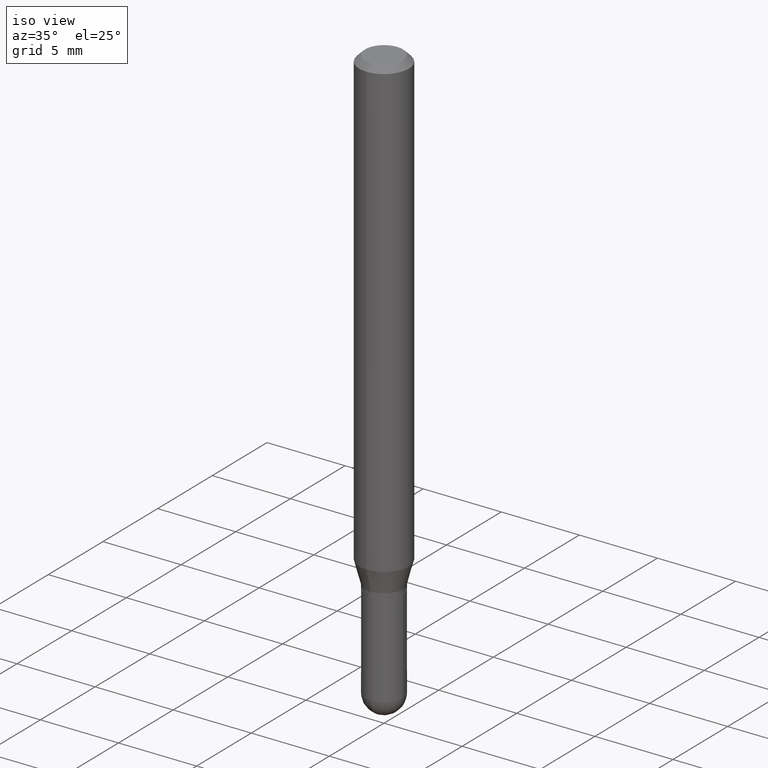
[diagram: clean part render]
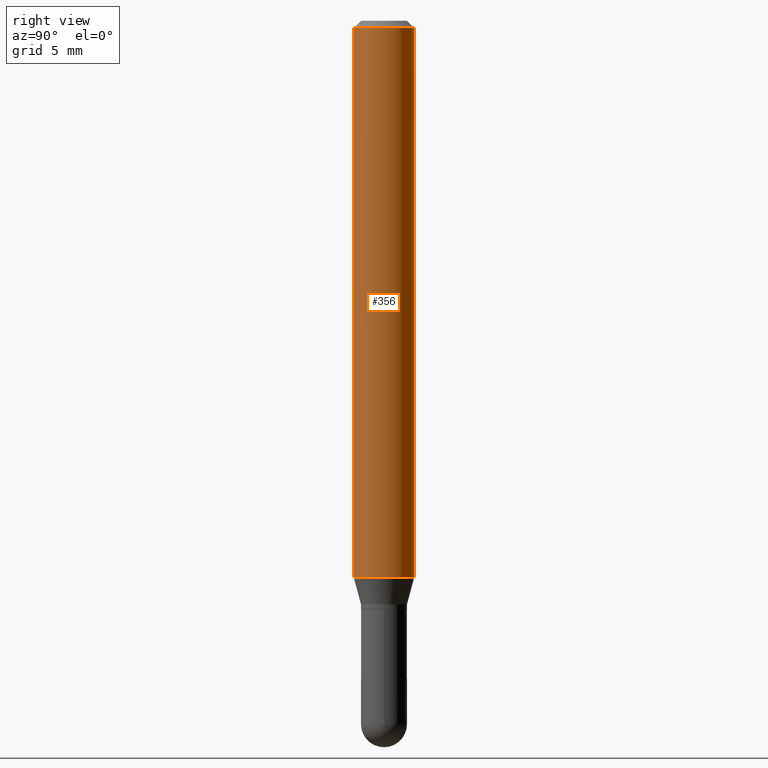
[diagram: tour spotlight — one face highlighted and labeled with its STEP entity id]
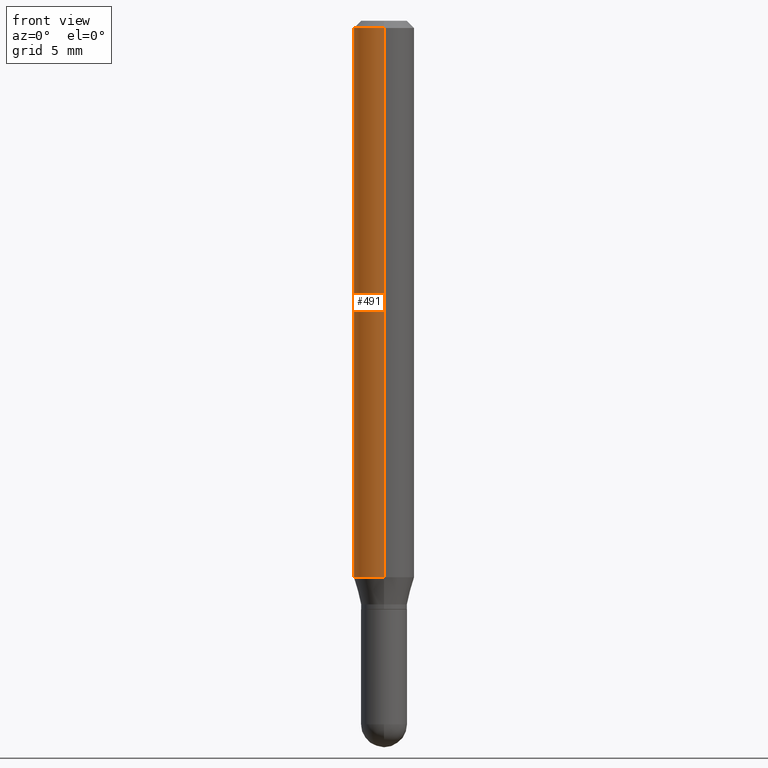
[diagram: tour spotlight — one face highlighted and labeled with its STEP entity id]
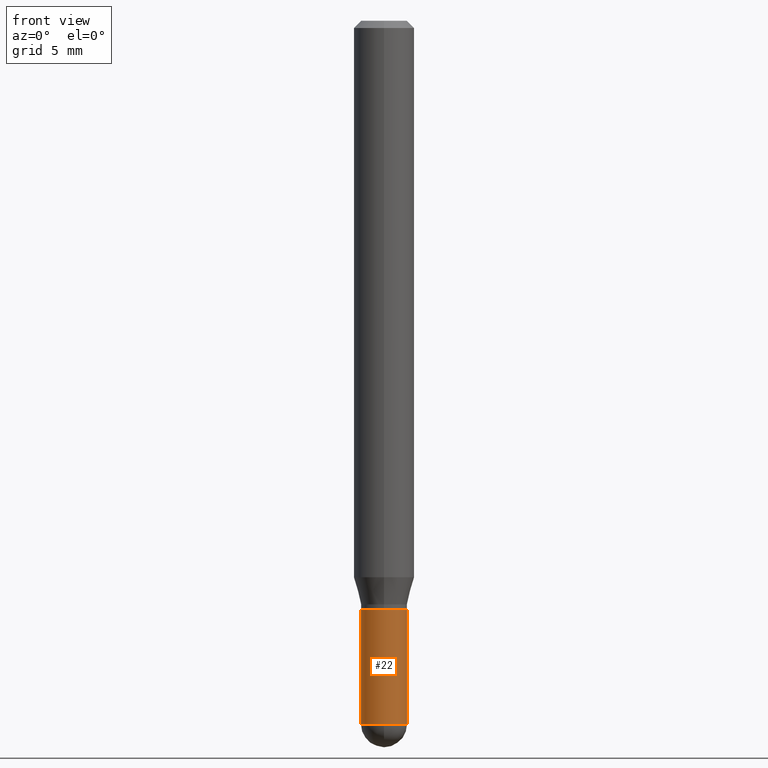
[diagram: tour spotlight — one face highlighted and labeled with its STEP entity id]
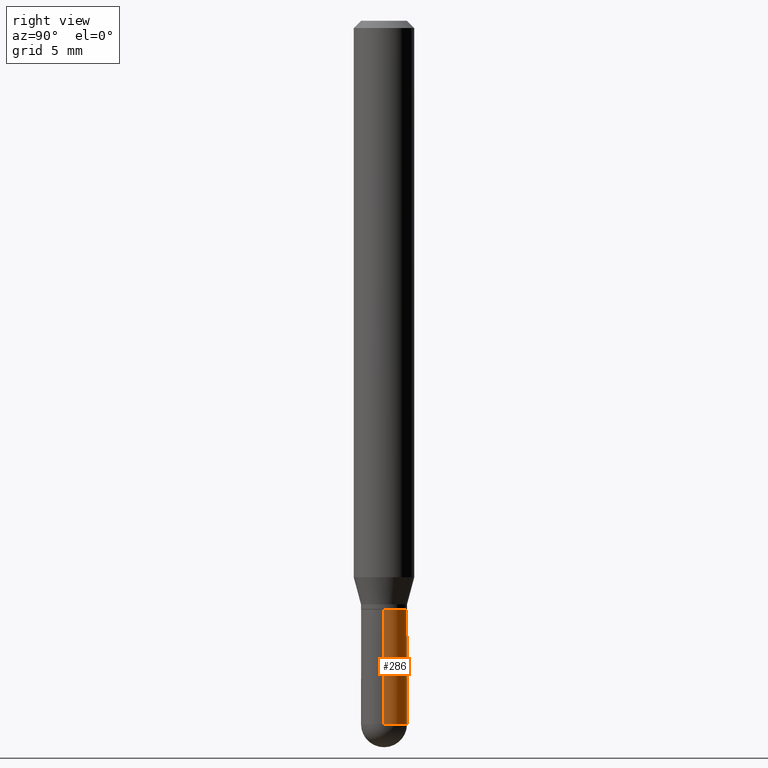
[diagram: tour spotlight — one face highlighted and labeled with its STEP entity id]
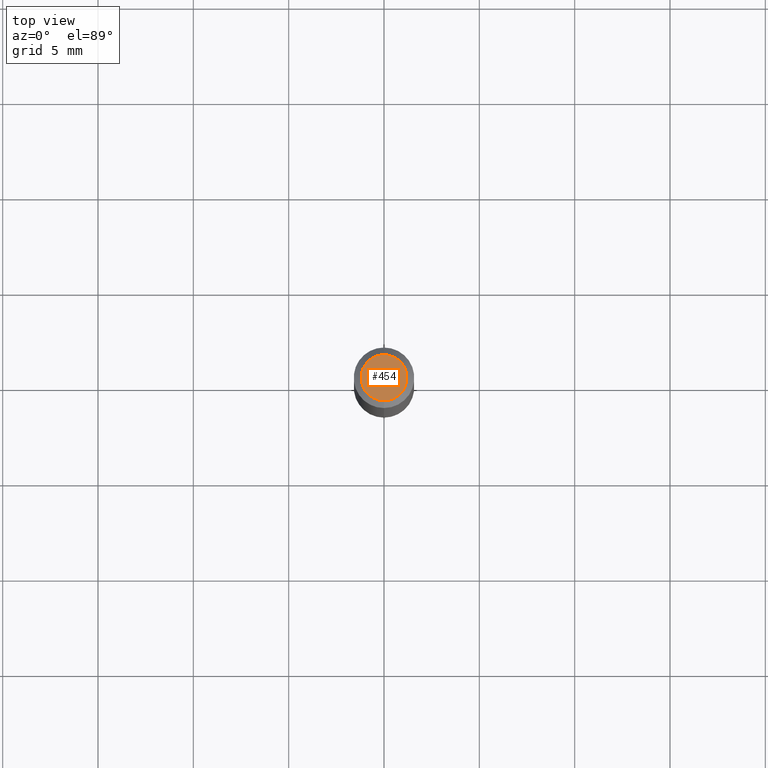
[diagram: tour spotlight — one face highlighted and labeled with its STEP entity id]
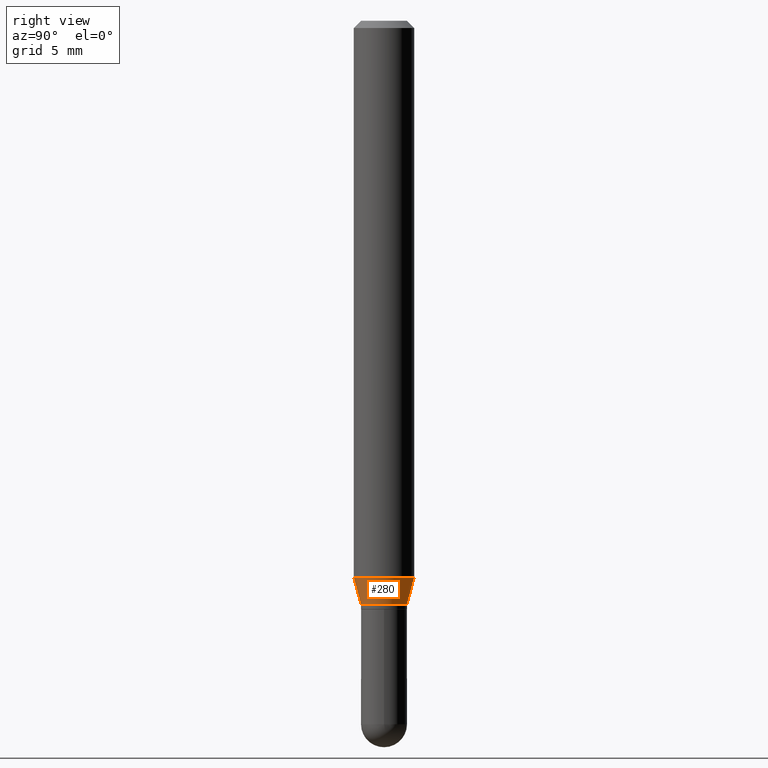
[diagram: tour spotlight — one face highlighted and labeled with its STEP entity id]
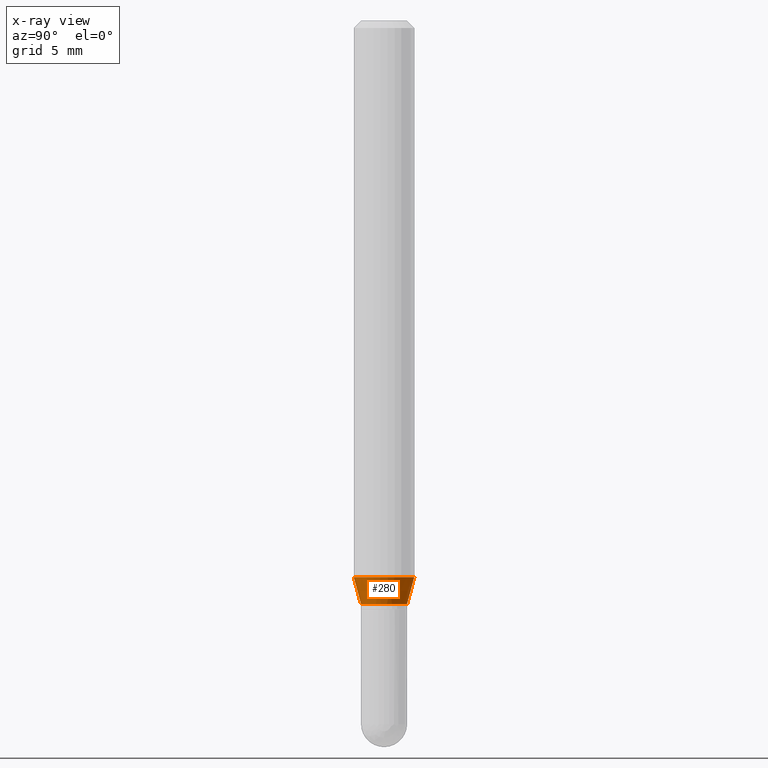
[diagram: x-ray of the same camera — body ghosted, this tour face saturated]
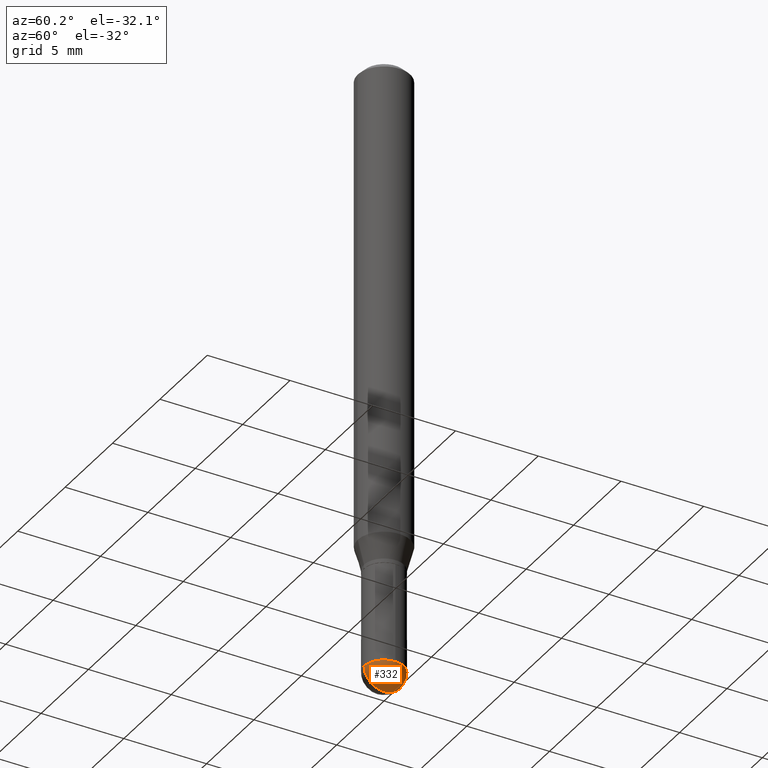
[diagram: tour spotlight — one face highlighted and labeled with its STEP entity id]
A machine part: a face-by-face anatomy tour. The part has 17 B-rep faces; the first image is the clean iso view, then the 7 largest visible faces are spotlighted one at a time (largest first), each with its STEP entity span.

Face 1 — right view, entity #356. In plain terms, the highlighted cylindrical surface (edge-blend (fillet) strip) has radius 1.5875 mm, axis along (-0, 0, 1).
Definition (entity closure, byte-faithful):
#16 = AXIS2_PLACEMENT_3D ( 'NONE', #258, #500, #21 ) ;
#18 = VERTEX_POINT ( 'NONE', #61 ) ;
#21 = DIRECTION ( 'NONE',  ( -6.982962677686265922E-15, -1.000000000000000000, 3.491452876302475461E-15 ) ) ;
#24 = CARTESIAN_POINT ( 'NONE',  ( -4.364351673553635169E-16, -0.06250000000000402456, -1.149019237886467204 ) ) ;
#32 = CARTESIAN_POINT ( 'NONE',  ( 3.668233022206667038E-31, -5.237179314453828365E-17, -0.01500000000000032904 ) ) ;
#33 = EDGE_CURVE ( 'NONE', #397, #18, #144, .T. ) ;
#54 = VECTOR ( 'NONE', #231, 39.37007874015748143 ) ;
#61 = CARTESIAN_POINT ( 'NONE',  ( 4.440892098500906207E-16, 0.06249999999999597544, -1.149019237886467870 ) ) ;
#64 = DIRECTION ( 'NONE',  ( -6.982962677686265922E-15, -1.000000000000000000, 3.483106191921935554E-15 ) ) ;
#71 = CARTESIAN_POINT ( 'NONE',  ( 2.809913541043856998E-29, -4.011746523045585662E-15, -1.149019237886467426 ) ) ;
#98 = VERTEX_POINT ( 'NONE', #499 ) ;
#101 = AXIS2_PLACEMENT_3D ( 'NONE', #32, #431, #64 ) ;
#106 = LINE ( 'NONE', #271, #54 ) ;
#128 = ORIENTED_EDGE ( 'NONE', *, *, #295, .T. ) ;
#138 = CYLINDRICAL_SURFACE ( 'NONE', #16, 0.06250000000000000000 ) ;
#144 = CIRCLE ( 'NONE', #449, 0.06250000000000000000 ) ;
#202 = VERTEX_POINT ( 'NONE', #398 ) ;
#231 = DIRECTION ( 'NONE',  ( -2.445488681471057444E-29, 3.491452876302475855E-15, 1.000000000000000000 ) ) ;
#248 = DIRECTION ( 'NONE',  ( -2.445488681471057444E-29, 3.491452876302475855E-15, 1.000000000000000000 ) ) ;
#258 = CARTESIAN_POINT ( 'NONE',  ( 0.000000000000000000, 0.000000000000000000, 0.000000000000000000 ) ) ;
#271 = CARTESIAN_POINT ( 'NONE',  ( -4.364351673553916201E-16, -0.06250000000000000000, 2.182158047689047163E-16 ) ) ;
#289 = LINE ( 'NONE', #337, #435 ) ;
#290 = EDGE_LOOP ( 'NONE', ( #400, #128, #408, #366 ) ) ;
#295 = EDGE_CURVE ( 'NONE', #18, #98, #289, .T. ) ;
#302 = DIRECTION ( 'NONE',  ( -6.982962677686265922E-15, -1.000000000000000000, 4.370956789862821150E-15 ) ) ;
#337 = CARTESIAN_POINT ( 'NONE',  ( 4.440892098500625669E-16, 0.06250000000000000000, -2.182158047689047163E-16 ) ) ;
#356 = ADVANCED_FACE ( 'NONE', ( #490 ), #138, .T. ) ;
#366 = ORIENTED_EDGE ( 'NONE', *, *, #512, .F. ) ;
#393 = CIRCLE ( 'NONE', #101, 0.06250000000000000000 ) ;
#397 = VERTEX_POINT ( 'NONE', #24 ) ;
#398 = CARTESIAN_POINT ( 'NONE',  ( -4.364351673553912750E-16, -0.06250000000000005551, -0.01500000000000011047 ) ) ;
#400 = ORIENTED_EDGE ( 'NONE', *, *, #33, .T. ) ;
#408 = ORIENTED_EDGE ( 'NONE', *, *, #423, .F. ) ;
#423 = EDGE_CURVE ( 'NONE', #202, #98, #393, .T. ) ;
#431 = DIRECTION ( 'NONE',  ( -2.445488681471057444E-29, 3.491452876302475855E-15, 1.000000000000000000 ) ) ;
#435 = VECTOR ( 'NONE', #248, 39.37007874015748143 ) ;
#449 = AXIS2_PLACEMENT_3D ( 'NONE', #71, #458, #302 ) ;
#458 = DIRECTION ( 'NONE',  ( -2.445488681471057444E-29, 3.491452876302475855E-15, 1.000000000000000000 ) ) ;
#490 = FACE_OUTER_BOUND ( 'NONE', #290, .T. ) ;
#499 = CARTESIAN_POINT ( 'NONE',  ( 4.440892098500909166E-16, 0.06249999999999995143, -0.01500000000000054588 ) ) ;
#500 = DIRECTION ( 'NONE',  ( -2.445488681471057444E-29, 3.491452876302475855E-15, 1.000000000000000000 ) ) ;
#512 = EDGE_CURVE ( 'NONE', #397, #202, #106, .T. ) ;

Face 2 — front view, entity #491. In plain terms, the highlighted cylindrical surface (edge-blend (fillet) strip) has radius 1.5875 mm, axis along (-0, 0, 1).
Definition (entity closure, byte-faithful):
#18 = VERTEX_POINT ( 'NONE', #61 ) ;
#24 = CARTESIAN_POINT ( 'NONE',  ( -4.364351673553635169E-16, -0.06250000000000402456, -1.149019237886467204 ) ) ;
#49 = DIRECTION ( 'NONE',  ( -6.982962677686265922E-15, -1.000000000000000000, 3.483106191921935554E-15 ) ) ;
#51 = EDGE_CURVE ( 'NONE', #18, #397, #437, .T. ) ;
#54 = VECTOR ( 'NONE', #231, 39.37007874015748143 ) ;
#61 = CARTESIAN_POINT ( 'NONE',  ( 4.440892098500906207E-16, 0.06249999999999597544, -1.149019237886467870 ) ) ;
#62 = CARTESIAN_POINT ( 'NONE',  ( 0.000000000000000000, 0.000000000000000000, 0.000000000000000000 ) ) ;
#83 = EDGE_LOOP ( 'NONE', ( #414, #238, #244, #489 ) ) ;
#98 = VERTEX_POINT ( 'NONE', #499 ) ;
#102 = DIRECTION ( 'NONE',  ( -2.445488681471057444E-29, 3.491452876302475855E-15, 1.000000000000000000 ) ) ;
#103 = FACE_OUTER_BOUND ( 'NONE', #83, .T. ) ;
#106 = LINE ( 'NONE', #271, #54 ) ;
#150 = CIRCLE ( 'NONE', #503, 0.06250000000000000000 ) ;
#152 = CARTESIAN_POINT ( 'NONE',  ( 2.809913541043856998E-29, -4.011746523045585662E-15, -1.149019237886467426 ) ) ;
#167 = CARTESIAN_POINT ( 'NONE',  ( 3.668233022206667038E-31, -5.237179314453828365E-17, -0.01500000000000032904 ) ) ;
#202 = VERTEX_POINT ( 'NONE', #398 ) ;
#208 = AXIS2_PLACEMENT_3D ( 'NONE', #152, #102, #234 ) ;
#224 = DIRECTION ( 'NONE',  ( -2.445488681471057444E-29, 3.491452876302475855E-15, 1.000000000000000000 ) ) ;
#231 = DIRECTION ( 'NONE',  ( -2.445488681471057444E-29, 3.491452876302475855E-15, 1.000000000000000000 ) ) ;
#234 = DIRECTION ( 'NONE',  ( -6.982962677686265922E-15, -1.000000000000000000, 4.370956789862821150E-15 ) ) ;
#238 = ORIENTED_EDGE ( 'NONE', *, *, #51, .T. ) ;
#244 = ORIENTED_EDGE ( 'NONE', *, *, #512, .T. ) ;
#248 = DIRECTION ( 'NONE',  ( -2.445488681471057444E-29, 3.491452876302475855E-15, 1.000000000000000000 ) ) ;
#265 = EDGE_CURVE ( 'NONE', #98, #202, #150, .T. ) ;
#271 = CARTESIAN_POINT ( 'NONE',  ( -4.364351673553916201E-16, -0.06250000000000000000, 2.182158047689047163E-16 ) ) ;
#289 = LINE ( 'NONE', #337, #435 ) ;
#295 = EDGE_CURVE ( 'NONE', #18, #98, #289, .T. ) ;
#337 = CARTESIAN_POINT ( 'NONE',  ( 4.440892098500625669E-16, 0.06250000000000000000, -2.182158047689047163E-16 ) ) ;
#364 = AXIS2_PLACEMENT_3D ( 'NONE', #62, #224, #382 ) ;
#382 = DIRECTION ( 'NONE',  ( -6.982962677686265922E-15, -1.000000000000000000, 3.491452876302475461E-15 ) ) ;
#397 = VERTEX_POINT ( 'NONE', #24 ) ;
#398 = CARTESIAN_POINT ( 'NONE',  ( -4.364351673553912750E-16, -0.06250000000000005551, -0.01500000000000011047 ) ) ;
#414 = ORIENTED_EDGE ( 'NONE', *, *, #295, .F. ) ;
#424 = CYLINDRICAL_SURFACE ( 'NONE', #364, 0.06250000000000000000 ) ;
#435 = VECTOR ( 'NONE', #248, 39.37007874015748143 ) ;
#437 = CIRCLE ( 'NONE', #208, 0.06250000000000000000 ) ;
#444 = DIRECTION ( 'NONE',  ( -2.445488681471057444E-29, 3.491452876302475855E-15, 1.000000000000000000 ) ) ;
#489 = ORIENTED_EDGE ( 'NONE', *, *, #265, .F. ) ;
#491 = ADVANCED_FACE ( 'NONE', ( #103 ), #424, .T. ) ;
#499 = CARTESIAN_POINT ( 'NONE',  ( 4.440892098500909166E-16, 0.06249999999999995143, -0.01500000000000054588 ) ) ;
#503 = AXIS2_PLACEMENT_3D ( 'NONE', #167, #444, #49 ) ;
#512 = EDGE_CURVE ( 'NONE', #397, #202, #106, .T. ) ;

Face 3 — front view, entity #22. In plain terms, the highlighted cylindrical surface (edge-blend (fillet) strip) has radius 1.2065 mm, axis along (-0, 0, 1).
Definition (entity closure, byte-faithful):
#1 = EDGE_LOOP ( 'NONE', ( #416, #257, #211, #438, #319 ) ) ;
#8 = CARTESIAN_POINT ( 'NONE',  ( 0.04749999999999999362, -4.573840553884519999E-15, -1.215000000000000080 ) ) ;
#14 = AXIS2_PLACEMENT_3D ( 'NONE', #432, #309, #182 ) ;
#22 = ADVANCED_FACE ( 'NONE', ( #28 ), #504, .T. ) ;
#27 = CARTESIAN_POINT ( 'NONE',  ( 0.04750000000000000749, -3.316907271900977082E-16, 2.316183968503069432E-30 ) ) ;
#28 = FACE_OUTER_BOUND ( 'NONE', #1, .T. ) ;
#52 = VERTEX_POINT ( 'NONE', #263 ) ;
#63 = DIRECTION ( 'NONE',  ( 1.000000000000000000, -6.982962677686266711E-15, 4.876176775795934672E-29 ) ) ;
#75 = VECTOR ( 'NONE', #433, 39.37007874015748143 ) ;
#107 = CARTESIAN_POINT ( 'NONE',  ( 3.552043440983912297E-29, -5.071376644669670605E-15, -1.452500000000000346 ) ) ;
#114 = LINE ( 'NONE', #27, #75 ) ;
#115 = CARTESIAN_POINT ( 'NONE',  ( 0.04750000000000000749, -4.988453962872144057E-15, -1.452500000000000346 ) ) ;
#122 = AXIS2_PLACEMENT_3D ( 'NONE', #367, #374, #410 ) ;
#124 = EDGE_CURVE ( 'NONE', #443, #131, #465, .T. ) ;
#131 = VERTEX_POINT ( 'NONE', #230 ) ;
#146 = DIRECTION ( 'NONE',  ( 1.000000000000000000, -6.982962677686260400E-15, 0.000000000000000000 ) ) ;
#161 = EDGE_CURVE ( 'NONE', #52, #284, #411, .T. ) ;
#182 = DIRECTION ( 'NONE',  ( 1.000000000000000000, -6.982962677686261977E-15, 0.000000000000000000 ) ) ;
#187 = LINE ( 'NONE', #345, #259 ) ;
#200 = VERTEX_POINT ( 'NONE', #115 ) ;
#211 = ORIENTED_EDGE ( 'NONE', *, *, #317, .T. ) ;
#230 = CARTESIAN_POINT ( 'NONE',  ( -3.316907271900626039E-16, -0.04750000000000514228, -1.452500000000000124 ) ) ;
#257 = ORIENTED_EDGE ( 'NONE', *, *, #124, .T. ) ;
#259 = VECTOR ( 'NONE', #498, 39.37007874015748143 ) ;
#263 = CARTESIAN_POINT ( 'NONE',  ( -0.04749999999999999362, -4.319255436195999053E-15, -1.215000000000000080 ) ) ;
#269 = DIRECTION ( 'NONE',  ( -2.445468806185136597E-29, 3.491481338843145583E-15, 1.000000000000000000 ) ) ;
#274 = CARTESIAN_POINT ( 'NONE',  ( 0.000000000000000000, 0.000000000000000000, 0.000000000000000000 ) ) ;
#284 = VERTEX_POINT ( 'NONE', #8 ) ;
#309 = DIRECTION ( 'NONE',  ( -2.445468806185136597E-29, 3.491481338843145583E-15, 1.000000000000000000 ) ) ;
#317 = EDGE_CURVE ( 'NONE', #131, #200, #363, .T. ) ;
#319 = ORIENTED_EDGE ( 'NONE', *, *, #161, .F. ) ;
#345 = CARTESIAN_POINT ( 'NONE',  ( -0.04750000000000000749, 3.375077994860476415E-16, -2.336494167871080260E-30 ) ) ;
#363 = CIRCLE ( 'NONE', #122, 0.04750000000000000749 ) ;
#367 = CARTESIAN_POINT ( 'NONE',  ( 3.552043440983912297E-29, -5.071376644669670605E-15, -1.452500000000000346 ) ) ;
#374 = DIRECTION ( 'NONE',  ( -2.445468806185136597E-29, 3.491481338843145583E-15, 1.000000000000000000 ) ) ;
#410 = DIRECTION ( 'NONE',  ( 1.000000000000000000, -6.982962677686260400E-15, 0.000000000000000000 ) ) ;
#411 = CIRCLE ( 'NONE', #14, 0.04749999999999999362 ) ;
#416 = ORIENTED_EDGE ( 'NONE', *, *, #497, .F. ) ;
#419 = AXIS2_PLACEMENT_3D ( 'NONE', #274, #425, #63 ) ;
#425 = DIRECTION ( 'NONE',  ( -2.445468806185136597E-29, 3.491481338843145583E-15, 1.000000000000000000 ) ) ;
#432 = CARTESIAN_POINT ( 'NONE',  ( 2.971244599514941458E-29, -4.242149826694422488E-15, -1.215000000000000080 ) ) ;
#433 = DIRECTION ( 'NONE',  ( -2.445468806185136877E-29, 3.491481338843145188E-15, 1.000000000000000000 ) ) ;
#438 = ORIENTED_EDGE ( 'NONE', *, *, #470, .T. ) ;
#443 = VERTEX_POINT ( 'NONE', #459 ) ;
#459 = CARTESIAN_POINT ( 'NONE',  ( -0.04750000000000000749, -4.319255436195999053E-15, -1.452500000000000346 ) ) ;
#465 = CIRCLE ( 'NONE', #511, 0.04750000000000000749 ) ;
#470 = EDGE_CURVE ( 'NONE', #200, #284, #114, .T. ) ;
#497 = EDGE_CURVE ( 'NONE', #443, #52, #187, .T. ) ;
#498 = DIRECTION ( 'NONE',  ( -2.445468806185136877E-29, 3.491481338843145188E-15, 1.000000000000000000 ) ) ;
#504 = CYLINDRICAL_SURFACE ( 'NONE', #419, 0.04750000000000000749 ) ;
#511 = AXIS2_PLACEMENT_3D ( 'NONE', #107, #269, #146 ) ;

Face 4 — right view, entity #286. In plain terms, the highlighted cylindrical surface (edge-blend (fillet) strip) has radius 1.2065 mm, axis along (-0, 0, 1).
Definition (entity closure, byte-faithful):
#5 = CARTESIAN_POINT ( 'NONE',  ( 3.375077994860835347E-16, 0.04749999999999498373, -1.452500000000000790 ) ) ;
#8 = CARTESIAN_POINT ( 'NONE',  ( 0.04749999999999999362, -4.573840553884519999E-15, -1.215000000000000080 ) ) ;
#19 = FACE_OUTER_BOUND ( 'NONE', #137, .T. ) ;
#27 = CARTESIAN_POINT ( 'NONE',  ( 0.04750000000000000749, -3.316907271900977082E-16, 2.316183968503069432E-30 ) ) ;
#38 = DIRECTION ( 'NONE',  ( -2.445468806185136597E-29, 3.491481338843145583E-15, 1.000000000000000000 ) ) ;
#52 = VERTEX_POINT ( 'NONE', #263 ) ;
#53 = DIRECTION ( 'NONE',  ( -2.445468806185136597E-29, 3.491481338843145583E-15, 1.000000000000000000 ) ) ;
#67 = DIRECTION ( 'NONE',  ( 1.000000000000000000, -6.982962677686261977E-15, 0.000000000000000000 ) ) ;
#75 = VECTOR ( 'NONE', #433, 39.37007874015748143 ) ;
#114 = LINE ( 'NONE', #27, #75 ) ;
#115 = CARTESIAN_POINT ( 'NONE',  ( 0.04750000000000000749, -4.988453962872144057E-15, -1.452500000000000346 ) ) ;
#129 = DIRECTION ( 'NONE',  ( 1.000000000000000000, -6.982962677686266711E-15, 4.876176775795934672E-29 ) ) ;
#137 = EDGE_LOOP ( 'NONE', ( #376, #261, #206, #159, #320 ) ) ;
#151 = CARTESIAN_POINT ( 'NONE',  ( 3.552043440983912297E-29, -5.071376644669670605E-15, -1.452500000000000346 ) ) ;
#153 = DIRECTION ( 'NONE',  ( -2.445468806185136597E-29, 3.491481338843145583E-15, 1.000000000000000000 ) ) ;
#159 = ORIENTED_EDGE ( 'NONE', *, *, #470, .F. ) ;
#164 = AXIS2_PLACEMENT_3D ( 'NONE', #380, #190, #67 ) ;
#187 = LINE ( 'NONE', #345, #259 ) ;
#190 = DIRECTION ( 'NONE',  ( -2.445468806185136597E-29, 3.491481338843145583E-15, 1.000000000000000000 ) ) ;
#200 = VERTEX_POINT ( 'NONE', #115 ) ;
#203 = EDGE_CURVE ( 'NONE', #316, #443, #440, .T. ) ;
#206 = ORIENTED_EDGE ( 'NONE', *, *, #476, .F. ) ;
#217 = AXIS2_PLACEMENT_3D ( 'NONE', #151, #153, #233 ) ;
#233 = DIRECTION ( 'NONE',  ( 1.000000000000000000, -6.982962677686260400E-15, 0.000000000000000000 ) ) ;
#259 = VECTOR ( 'NONE', #498, 39.37007874015748143 ) ;
#261 = ORIENTED_EDGE ( 'NONE', *, *, #497, .T. ) ;
#263 = CARTESIAN_POINT ( 'NONE',  ( -0.04749999999999999362, -4.319255436195999053E-15, -1.215000000000000080 ) ) ;
#284 = VERTEX_POINT ( 'NONE', #8 ) ;
#286 = ADVANCED_FACE ( 'NONE', ( #19 ), #448, .T. ) ;
#291 = AXIS2_PLACEMENT_3D ( 'NONE', #395, #38, #507 ) ;
#316 = VERTEX_POINT ( 'NONE', #5 ) ;
#320 = ORIENTED_EDGE ( 'NONE', *, *, #378, .T. ) ;
#345 = CARTESIAN_POINT ( 'NONE',  ( -0.04750000000000000749, 3.375077994860476415E-16, -2.336494167871080260E-30 ) ) ;
#376 = ORIENTED_EDGE ( 'NONE', *, *, #203, .T. ) ;
#378 = EDGE_CURVE ( 'NONE', #200, #316, #417, .T. ) ;
#380 = CARTESIAN_POINT ( 'NONE',  ( 2.971244599514941458E-29, -4.242149826694422488E-15, -1.215000000000000080 ) ) ;
#395 = CARTESIAN_POINT ( 'NONE',  ( 3.552043440983912297E-29, -5.071376644669670605E-15, -1.452500000000000346 ) ) ;
#415 = CARTESIAN_POINT ( 'NONE',  ( 0.000000000000000000, 0.000000000000000000, 0.000000000000000000 ) ) ;
#417 = CIRCLE ( 'NONE', #217, 0.04750000000000000749 ) ;
#433 = DIRECTION ( 'NONE',  ( -2.445468806185136877E-29, 3.491481338843145188E-15, 1.000000000000000000 ) ) ;
#440 = CIRCLE ( 'NONE', #291, 0.04750000000000000749 ) ;
#443 = VERTEX_POINT ( 'NONE', #459 ) ;
#448 = CYLINDRICAL_SURFACE ( 'NONE', #474, 0.04750000000000000749 ) ;
#459 = CARTESIAN_POINT ( 'NONE',  ( -0.04750000000000000749, -4.319255436195999053E-15, -1.452500000000000346 ) ) ;
#470 = EDGE_CURVE ( 'NONE', #200, #284, #114, .T. ) ;
#474 = AXIS2_PLACEMENT_3D ( 'NONE', #415, #53, #129 ) ;
#476 = EDGE_CURVE ( 'NONE', #284, #52, #478, .T. ) ;
#478 = CIRCLE ( 'NONE', #164, 0.04749999999999999362 ) ;
#497 = EDGE_CURVE ( 'NONE', #443, #52, #187, .T. ) ;
#498 = DIRECTION ( 'NONE',  ( -2.445468806185136877E-29, 3.491481338843145188E-15, 1.000000000000000000 ) ) ;
#507 = DIRECTION ( 'NONE',  ( 1.000000000000000000, -6.982962677686260400E-15, 0.000000000000000000 ) ) ;

Face 5 — top view, entity #454. In plain terms, the highlighted planar face has unit normal (0, -0, -1).
Definition (entity closure, byte-faithful):
#17 = EDGE_CURVE ( 'NONE', #484, #216, #201, .T. ) ;
#43 = AXIS2_PLACEMENT_3D ( 'NONE', #390, #311, #273 ) ;
#74 = AXIS2_PLACEMENT_3D ( 'NONE', #191, #386, #389 ) ;
#76 = CARTESIAN_POINT ( 'NONE',  ( 3.840629472727447874E-16, 0.04749999999999999362, -4.939923113072091241E-16 ) ) ;
#108 = CARTESIAN_POINT ( 'NONE',  ( -3.773273898774340269E-16, -0.04749999999999999362, -1.623042880584739168E-16 ) ) ;
#112 = FACE_OUTER_BOUND ( 'NONE', #421, .T. ) ;
#121 = ORIENTED_EDGE ( 'NONE', *, *, #17, .T. ) ;
#191 = CARTESIAN_POINT ( 'NONE',  ( 8.024829527183616290E-45, -1.145714324781423715E-30, -3.281482996828415081E-16 ) ) ;
#201 = CIRCLE ( 'NONE', #74, 0.04749999999999999362 ) ;
#216 = VERTEX_POINT ( 'NONE', #76 ) ;
#264 = DIRECTION ( 'NONE',  ( 2.445488681471057163E-29, -3.491452876302475855E-15, -1.000000000000000000 ) ) ;
#273 = DIRECTION ( 'NONE',  ( -6.982962677686266711E-15, -1.000000000000000000, 3.491452876302476644E-15 ) ) ;
#301 = AXIS2_PLACEMENT_3D ( 'NONE', #385, #264, #471 ) ;
#311 = DIRECTION ( 'NONE',  ( -2.445488681471057444E-29, 3.491452876302475855E-15, 1.000000000000000000 ) ) ;
#354 = PLANE ( 'NONE',  #301 ) ;
#360 = ORIENTED_EDGE ( 'NONE', *, *, #394, .T. ) ;
#385 = CARTESIAN_POINT ( 'NONE',  ( 3.316907271900976096E-16, 0.04749999999999999362, -3.299181614657883454E-16 ) ) ;
#386 = DIRECTION ( 'NONE',  ( -2.445488681471057444E-29, 3.491452876302475855E-15, 1.000000000000000000 ) ) ;
#389 = DIRECTION ( 'NONE',  ( -6.982962677686266711E-15, -1.000000000000000000, 3.491452876302476644E-15 ) ) ;
#390 = CARTESIAN_POINT ( 'NONE',  ( 8.024829527183616290E-45, -1.145714324781423715E-30, -3.281482996828415081E-16 ) ) ;
#394 = EDGE_CURVE ( 'NONE', #216, #484, #494, .T. ) ;
#421 = EDGE_LOOP ( 'NONE', ( #360, #121 ) ) ;
#454 = ADVANCED_FACE ( 'NONE', ( #112 ), #354, .F. ) ;
#471 = DIRECTION ( 'NONE',  ( 6.982962677686265922E-15, 1.000000000000000000, -3.491452876302475855E-15 ) ) ;
#484 = VERTEX_POINT ( 'NONE', #108 ) ;
#494 = CIRCLE ( 'NONE', #43, 0.04749999999999999362 ) ;

Face 6 — right view, entity #280. An x-ray twin of the same camera follows (body ghosted, this face saturated) — the face is partly hidden behind the body. In plain terms, the highlighted conical surface has half-angle 15 deg.
Definition (entity closure, byte-faithful):
#18 = VERTEX_POINT ( 'NONE', #61 ) ;
#24 = CARTESIAN_POINT ( 'NONE',  ( -4.364351673553635169E-16, -0.06250000000000402456, -1.149019237886467204 ) ) ;
#33 = EDGE_CURVE ( 'NONE', #397, #18, #144, .T. ) ;
#34 = VECTOR ( 'NONE', #352, 39.37007874015748143 ) ;
#37 = EDGE_CURVE ( 'NONE', #179, #397, #344, .T. ) ;
#57 = DIRECTION ( 'NONE',  ( -2.445488681471057444E-29, 3.491452876302475855E-15, 1.000000000000000000 ) ) ;
#59 = ORIENTED_EDGE ( 'NONE', *, *, #312, .T. ) ;
#61 = CARTESIAN_POINT ( 'NONE',  ( 4.440892098500906207E-16, 0.06249999999999597544, -1.149019237886467870 ) ) ;
#71 = CARTESIAN_POINT ( 'NONE',  ( 2.809913541043856998E-29, -4.011746523045585662E-15, -1.149019237886467426 ) ) ;
#80 = CARTESIAN_POINT ( 'NONE',  ( -3.316907271900685203E-16, -0.04750000000000426797, -1.205000000000000293 ) ) ;
#100 = DIRECTION ( 'NONE',  ( -2.445488681471057444E-29, 3.491452876302475855E-15, 1.000000000000000000 ) ) ;
#119 = LINE ( 'NONE', #239, #186 ) ;
#144 = CIRCLE ( 'NONE', #449, 0.06250000000000000000 ) ;
#171 = CARTESIAN_POINT ( 'NONE',  ( 2.946813861172625415E-29, -4.207200715944485096E-15, -1.205000000000000293 ) ) ;
#173 = VERTEX_POINT ( 'NONE', #305 ) ;
#176 = CIRCLE ( 'NONE', #278, 0.04750000000000005607 ) ;
#179 = VERTEX_POINT ( 'NONE', #80 ) ;
#180 = CARTESIAN_POINT ( 'NONE',  ( 2.946813861172625415E-29, -4.207200715944485096E-15, -1.205000000000000293 ) ) ;
#186 = VECTOR ( 'NONE', #281, 39.37007874015748143 ) ;
#193 = CARTESIAN_POINT ( 'NONE',  ( -3.316907271900685203E-16, -0.04750000000000426797, -1.205000000000000293 ) ) ;
#197 = EDGE_CURVE ( 'NONE', #173, #18, #119, .T. ) ;
#222 = DIRECTION ( 'NONE',  ( -6.982962677686265133E-15, -1.000000000000000000, 2.875629467015010530E-15 ) ) ;
#239 = CARTESIAN_POINT ( 'NONE',  ( 3.375077994860774210E-16, 0.04749999999999585110, -1.205000000000000515 ) ) ;
#255 = DIRECTION ( 'NONE',  ( -6.982962677686265133E-15, -1.000000000000000000, 2.875629467015010530E-15 ) ) ;
#266 = ORIENTED_EDGE ( 'NONE', *, *, #33, .F. ) ;
#278 = AXIS2_PLACEMENT_3D ( 'NONE', #171, #57, #222 ) ;
#280 = ADVANCED_FACE ( 'NONE', ( #457 ), #353, .T. ) ;
#281 = DIRECTION ( 'NONE',  ( 1.839019923739597160E-15, 0.2588190451025245142, 0.9659258262890673130 ) ) ;
#296 = ORIENTED_EDGE ( 'NONE', *, *, #197, .T. ) ;
#302 = DIRECTION ( 'NONE',  ( -6.982962677686265922E-15, -1.000000000000000000, 4.370956789862821150E-15 ) ) ;
#305 = CARTESIAN_POINT ( 'NONE',  ( 3.907985046680840948E-16, 0.04749999999999585110, -1.205000000000000515 ) ) ;
#312 = EDGE_CURVE ( 'NONE', #179, #173, #176, .T. ) ;
#344 = LINE ( 'NONE', #193, #34 ) ;
#352 = DIRECTION ( 'NONE',  ( -1.807323732225326984E-15, -0.2588190451025177419, 0.9659258262890690894 ) ) ;
#353 = CONICAL_SURFACE ( 'NONE', #407, 0.04750000000000005607, 0.2617993877991497964 ) ;
#370 = EDGE_LOOP ( 'NONE', ( #59, #296, #266, #447 ) ) ;
#397 = VERTEX_POINT ( 'NONE', #24 ) ;
#407 = AXIS2_PLACEMENT_3D ( 'NONE', #180, #100, #255 ) ;
#447 = ORIENTED_EDGE ( 'NONE', *, *, #37, .F. ) ;
#449 = AXIS2_PLACEMENT_3D ( 'NONE', #71, #458, #302 ) ;
#457 = FACE_OUTER_BOUND ( 'NONE', #370, .T. ) ;
#458 = DIRECTION ( 'NONE',  ( -2.445488681471057444E-29, 3.491452876302475855E-15, 1.000000000000000000 ) ) ;

Face 7 — auxiliary view, entity #332. In plain terms, the highlighted spherical surface has radius 1.2065 mm.
Definition (entity closure, byte-faithful):
#5 = CARTESIAN_POINT ( 'NONE',  ( 3.375077994860835347E-16, 0.04749999999999498373, -1.452500000000000790 ) ) ;
#65 = AXIS2_PLACEMENT_3D ( 'NONE', #355, #509, #315 ) ;
#68 = DIRECTION ( 'NONE',  ( -6.982962677686265922E-15, -1.000000000000000000, 0.000000000000000000 ) ) ;
#90 = ORIENTED_EDGE ( 'NONE', *, *, #378, .F. ) ;
#91 = FACE_OUTER_BOUND ( 'NONE', #455, .T. ) ;
#115 = CARTESIAN_POINT ( 'NONE',  ( 0.04750000000000000749, -4.988453962872144057E-15, -1.452500000000000346 ) ) ;
#117 = EDGE_CURVE ( 'NONE', #166, #131, #375, .T. ) ;
#122 = AXIS2_PLACEMENT_3D ( 'NONE', #367, #374, #410 ) ;
#131 = VERTEX_POINT ( 'NONE', #230 ) ;
#132 = CARTESIAN_POINT ( 'NONE',  ( 3.547981401110308940E-29, -5.077193716965619798E-15, -1.452500000000000124 ) ) ;
#139 = ORIENTED_EDGE ( 'NONE', *, *, #317, .F. ) ;
#151 = CARTESIAN_POINT ( 'NONE',  ( 3.552043440983912297E-29, -5.071376644669670605E-15, -1.452500000000000346 ) ) ;
#153 = DIRECTION ( 'NONE',  ( -2.445468806185136597E-29, 3.491481338843145583E-15, 1.000000000000000000 ) ) ;
#166 = VERTEX_POINT ( 'NONE', #493 ) ;
#200 = VERTEX_POINT ( 'NONE', #115 ) ;
#217 = AXIS2_PLACEMENT_3D ( 'NONE', #151, #153, #233 ) ;
#220 = EDGE_CURVE ( 'NONE', #166, #316, #475, .T. ) ;
#230 = CARTESIAN_POINT ( 'NONE',  ( -3.316907271900626039E-16, -0.04750000000000514228, -1.452500000000000124 ) ) ;
#233 = DIRECTION ( 'NONE',  ( 1.000000000000000000, -6.982962677686260400E-15, 0.000000000000000000 ) ) ;
#252 = DIRECTION ( 'NONE',  ( 1.000000000000000000, -6.982962677686265922E-15, 4.883557194083112901E-29 ) ) ;
#262 = SPHERICAL_SURFACE ( 'NONE', #466, 0.04750000000000012546 ) ;
#315 = DIRECTION ( 'NONE',  ( 7.105427357601001070E-15, 1.000000000000000000, 0.000000000000000000 ) ) ;
#316 = VERTEX_POINT ( 'NONE', #5 ) ;
#317 = EDGE_CURVE ( 'NONE', #131, #200, #363, .T. ) ;
#330 = ORIENTED_EDGE ( 'NONE', *, *, #117, .F. ) ;
#332 = ADVANCED_FACE ( 'NONE', ( #91 ), #262, .T. ) ;
#343 = AXIS2_PLACEMENT_3D ( 'NONE', #496, #467, #68 ) ;
#355 = CARTESIAN_POINT ( 'NONE',  ( 3.547981401110308940E-29, -5.077193716965619798E-15, -1.452500000000000124 ) ) ;
#363 = CIRCLE ( 'NONE', #122, 0.04750000000000000749 ) ;
#367 = CARTESIAN_POINT ( 'NONE',  ( 3.552043440983912297E-29, -5.071376644669670605E-15, -1.452500000000000346 ) ) ;
#374 = DIRECTION ( 'NONE',  ( -2.445468806185136597E-29, 3.491481338843145583E-15, 1.000000000000000000 ) ) ;
#375 = CIRCLE ( 'NONE', #343, 0.04750000000000012546 ) ;
#378 = EDGE_CURVE ( 'NONE', #200, #316, #417, .T. ) ;
#410 = DIRECTION ( 'NONE',  ( 1.000000000000000000, -6.982962677686260400E-15, 0.000000000000000000 ) ) ;
#417 = CIRCLE ( 'NONE', #217, 0.04750000000000000749 ) ;
#453 = DIRECTION ( 'NONE',  ( -6.982962677686265922E-15, -1.000000000000000000, 5.751258934030012383E-15 ) ) ;
#455 = EDGE_LOOP ( 'NONE', ( #330, #492, #90, #139 ) ) ;
#466 = AXIS2_PLACEMENT_3D ( 'NONE', #132, #252, #453 ) ;
#467 = DIRECTION ( 'NONE',  ( -1.000000000000000000, 6.982962677686265922E-15, -4.883557194083112340E-29 ) ) ;
#475 = CIRCLE ( 'NONE', #65, 0.04750000000000012546 ) ;
#492 = ORIENTED_EDGE ( 'NONE', *, *, #220, .T. ) ;
#493 = CARTESIAN_POINT ( 'NONE',  ( 3.662110149467302662E-29, -5.245947616708644728E-15, -1.500000000000000444 ) ) ;
#496 = CARTESIAN_POINT ( 'NONE',  ( 3.547981401110308940E-29, -5.077193716965619798E-15, -1.452500000000000124 ) ) ;
#509 = DIRECTION ( 'NONE',  ( 1.000000000000000000, -7.105427357601001070E-15, 4.926315508542082329E-29 ) ) ;